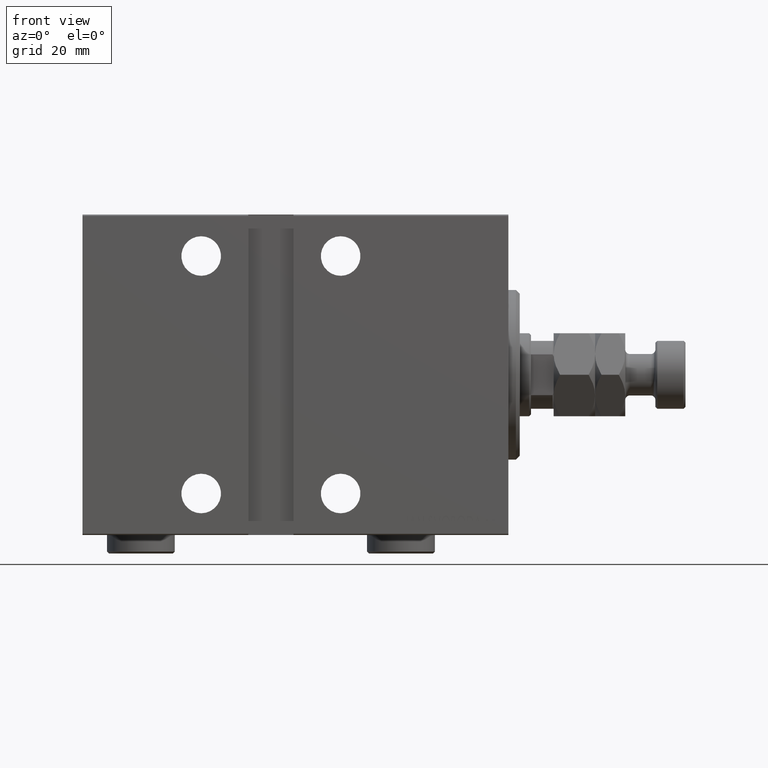
[diagram: clean part render]
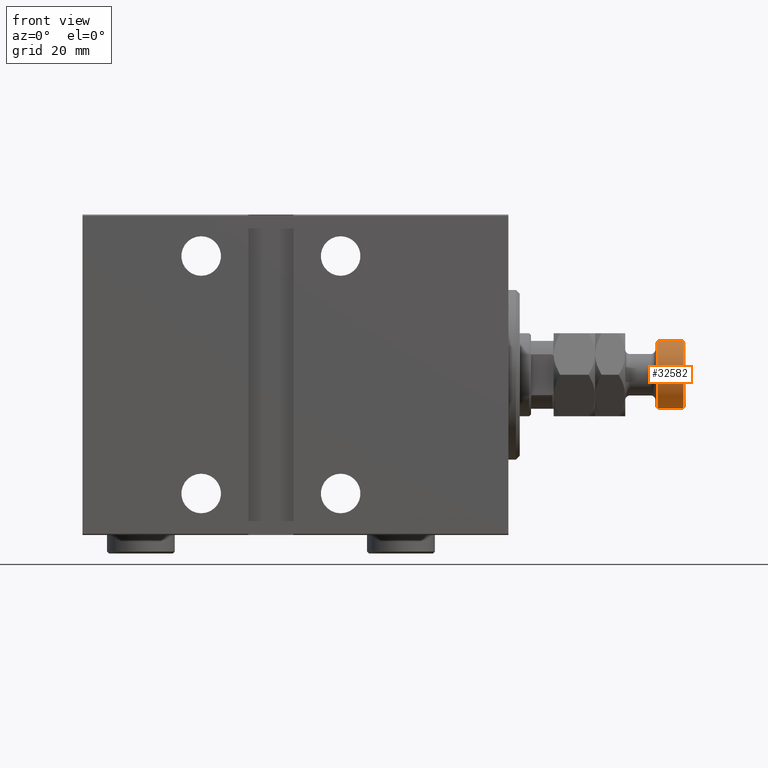
[diagram: same view with one face highlighted and labeled with its STEP entity id]
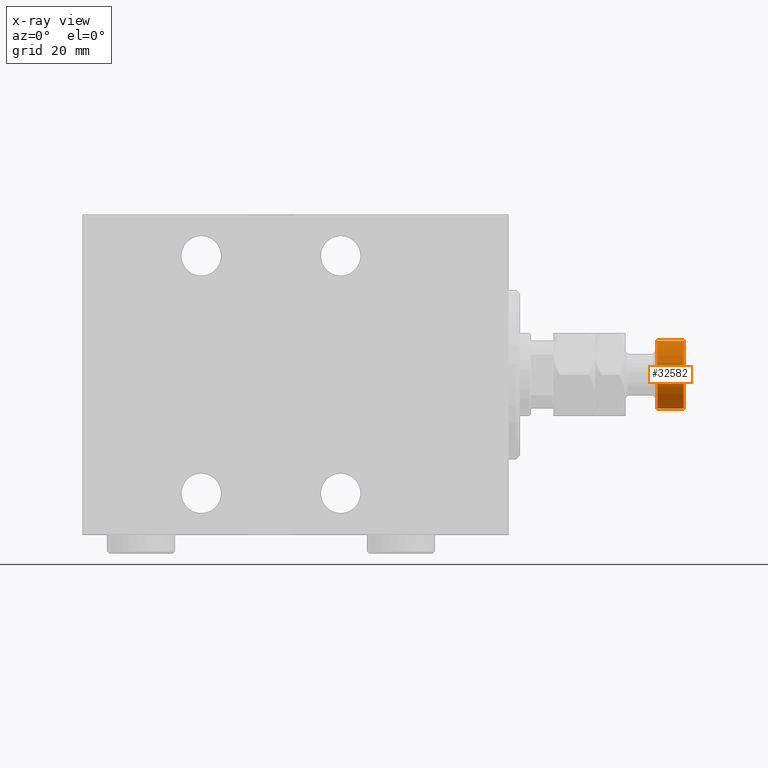
[diagram: x-ray of the same camera — body ghosted, the highlighted face saturated]
A machine part, front view. The second image highlights one B-rep face of the part: STEP entity #32582.
The next image is the same camera in x-ray: the body ghosted, the highlighted face saturated — about 0% of this face is hidden behind the body in this view.
In plain terms, the highlighted cylindrical surface (edge-blend (fillet) strip) has radius 9 mm, axis along (-1, -0, 0).
Its self-contained STEP definition (entity closure, byte-faithful):
#993 = DIRECTION ( 'NONE',  ( 1.000000000000000000, 0.000000000000000000, 0.000000000000000000 ) ) ;
#2724 = DIRECTION ( 'NONE',  ( -1.000000000000000000, 0.000000000000000000, 0.000000000000000000 ) ) ;
#4273 = AXIS2_PLACEMENT_3D ( 'NONE', #29162, #25651, #993 ) ;
#4412 = EDGE_CURVE ( 'NONE', #20614, #30724, #36768, .T. ) ;
#4975 = CIRCLE ( 'NONE', #22790, 9.000000000000000000 ) ;
#6503 = VERTEX_POINT ( 'NONE', #14005 ) ;
#7281 = EDGE_CURVE ( 'NONE', #6503, #45020, #19899, .T. ) ;
#8385 = DIRECTION ( 'NONE',  ( -0.000000000000000000, -0.000000000000000000, -1.000000000000000000 ) ) ;
#8939 = EDGE_CURVE ( 'NONE', #20614, #6503, #4975, .T. ) ;
#9966 = EDGE_CURVE ( 'NONE', #45020, #30724, #24294, .T. ) ;
#10126 = DIRECTION ( 'NONE',  ( 0.000000000000000000, 0.000000000000000000, -1.000000000000000000 ) ) ;
#11146 = ORIENTED_EDGE ( 'NONE', *, *, #9966, .T. ) ;
#12970 = CARTESIAN_POINT ( 'NONE',  ( 0.000000000000000000, 0.000000000000000000, 35.00000000000000000 ) ) ;
#14005 = CARTESIAN_POINT ( 'NONE',  ( -9.000000000000000000, 0.000000000000000000, 34.49999999999999289 ) ) ;
#15141 = CARTESIAN_POINT ( 'NONE',  ( 9.000000000000000000, 1.102182119232617714E-15, 35.00000000000000000 ) ) ;
#15494 = ORIENTED_EDGE ( 'NONE', *, *, #8939, .T. ) ;
#15513 = DIRECTION ( 'NONE',  ( -0.000000000000000000, -0.000000000000000000, -1.000000000000000000 ) ) ;
#16165 = VECTOR ( 'NONE', #15513, 1000.000000000000000 ) ;
#18360 = ORIENTED_EDGE ( 'NONE', *, *, #4412, .F. ) ;
#19899 = LINE ( 'NONE', #44796, #16165 ) ;
#20036 = ORIENTED_EDGE ( 'NONE', *, *, #7281, .T. ) ;
#20582 = CARTESIAN_POINT ( 'NONE',  ( 0.000000000000000000, 0.000000000000000000, 34.49999999999999289 ) ) ;
#20614 = VERTEX_POINT ( 'NONE', #28242 ) ;
#22790 = AXIS2_PLACEMENT_3D ( 'NONE', #20582, #10126, #34791 ) ;
#24102 = FACE_OUTER_BOUND ( 'NONE', #35882, .T. ) ;
#24294 = CIRCLE ( 'NONE', #4273, 9.000000000000000000 ) ;
#24336 = DIRECTION ( 'NONE',  ( -0.000000000000000000, -0.000000000000000000, -1.000000000000000000 ) ) ;
#25651 = DIRECTION ( 'NONE',  ( -0.000000000000000000, -0.000000000000000000, 1.000000000000000000 ) ) ;
#25758 = VECTOR ( 'NONE', #8385, 1000.000000000000000 ) ;
#28242 = CARTESIAN_POINT ( 'NONE',  ( 9.000000000000000000, 1.102182119232617714E-15, 34.49999999999999289 ) ) ;
#29162 = CARTESIAN_POINT ( 'NONE',  ( 0.000000000000000000, 0.000000000000000000, 27.50000000000000000 ) ) ;
#30724 = VERTEX_POINT ( 'NONE', #35997 ) ;
#32582 = ADVANCED_FACE ( 'NONE', ( #24102 ), #44844, .T. ) ;
#34791 = DIRECTION ( 'NONE',  ( 1.000000000000000000, 0.000000000000000000, 0.000000000000000000 ) ) ;
#35557 = CARTESIAN_POINT ( 'NONE',  ( -9.000000000000000000, 0.000000000000000000, 27.50000000000000000 ) ) ;
#35882 = EDGE_LOOP ( 'NONE', ( #18360, #15494, #20036, #11146 ) ) ;
#35997 = CARTESIAN_POINT ( 'NONE',  ( 9.000000000000000000, 1.102182119232617714E-15, 27.50000000000000000 ) ) ;
#36768 = LINE ( 'NONE', #15141, #25758 ) ;
#43712 = AXIS2_PLACEMENT_3D ( 'NONE', #12970, #24336, #2724 ) ;
#44796 = CARTESIAN_POINT ( 'NONE',  ( -9.000000000000000000, 0.000000000000000000, 35.00000000000000000 ) ) ;
#44844 = CYLINDRICAL_SURFACE ( 'NONE', #43712, 9.000000000000000000 ) ;
#45020 = VERTEX_POINT ( 'NONE', #35557 ) ;